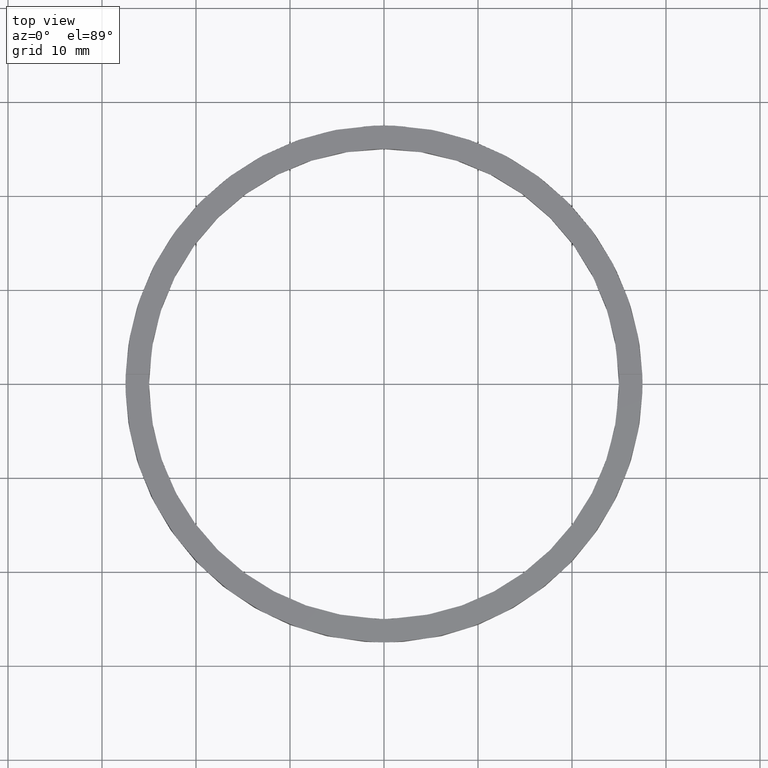
[diagram: clean part render]
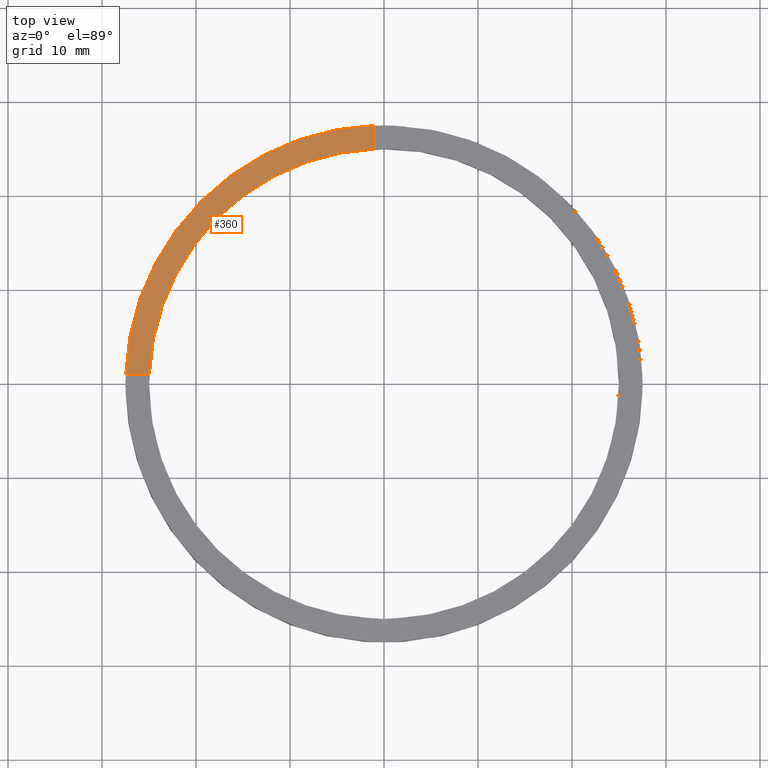
[diagram: same view with one face highlighted and labeled with its STEP entity id]
A machine part, top view. The second image highlights one B-rep face of the part: STEP entity #360.
In plain terms, the highlighted planar face has unit normal (0, 0, 1).
Its self-contained STEP definition (entity closure, byte-faithful):
#7 = CARTESIAN_POINT ( 'NONE',  ( -17.50000000000018474, 0.9999999999999749090, 2.500000000000000000 ) ) ;
#8 = AXIS2_PLACEMENT_3D ( 'NONE', #655, #257, #367 ) ;
#25 = CARTESIAN_POINT ( 'NONE',  ( -1.000000000000026423, 17.50000000000000000, 2.500000000000000000 ) ) ;
#42 = AXIS2_PLACEMENT_3D ( 'NONE', #298, #112, #399 ) ;
#47 = DIRECTION ( 'NONE',  ( 0.000000000000000000, 0.000000000000000000, 1.000000000000000000 ) ) ;
#66 = CIRCLE ( 'NONE', #8, 25.00000000000000000 ) ;
#67 = LINE ( 'NONE', #25, #320 ) ;
#75 = FACE_OUTER_BOUND ( 'NONE', #719, .T. ) ;
#86 = LINE ( 'NONE', #7, #604 ) ;
#89 = EDGE_CURVE ( 'NONE', #212, #713, #67, .T. ) ;
#108 = CARTESIAN_POINT ( 'NONE',  ( -27.48181216732259102, 0.9999999999999731326, 2.500000000000000000 ) ) ;
#112 = DIRECTION ( 'NONE',  ( 0.000000000000000000, 0.000000000000000000, 1.000000000000000000 ) ) ;
#128 = EDGE_CURVE ( 'NONE', #336, #737, #86, .T. ) ;
#133 = DIRECTION ( 'NONE',  ( -0.000000000000000000, -1.000000000000000000, -0.000000000000000000 ) ) ;
#153 = ORIENTED_EDGE ( 'NONE', *, *, #128, .F. ) ;
#200 = CARTESIAN_POINT ( 'NONE',  ( -1.000000000000026423, 27.48181216732259102, 2.500000000000000000 ) ) ;
#212 = VERTEX_POINT ( 'NONE', #200 ) ;
#238 = ORIENTED_EDGE ( 'NONE', *, *, #317, .F. ) ;
#257 = DIRECTION ( 'NONE',  ( 0.000000000000000000, 0.000000000000000000, 1.000000000000000000 ) ) ;
#298 = CARTESIAN_POINT ( 'NONE',  ( 0.000000000000000000, 0.000000000000000000, 2.500000000000000000 ) ) ;
#317 = EDGE_CURVE ( 'NONE', #713, #336, #66, .T. ) ;
#320 = VECTOR ( 'NONE', #133, 1000.000000000000000 ) ;
#336 = VERTEX_POINT ( 'NONE', #718 ) ;
#340 = CIRCLE ( 'NONE', #541, 27.50000000000000000 ) ;
#360 = ADVANCED_FACE ( 'NONE', ( #75 ), #661, .T. ) ;
#366 = EDGE_CURVE ( 'NONE', #212, #737, #340, .T. ) ;
#367 = DIRECTION ( 'NONE',  ( 1.000000000000000000, 0.000000000000000000, 0.000000000000000000 ) ) ;
#374 = ORIENTED_EDGE ( 'NONE', *, *, #366, .T. ) ;
#376 = ORIENTED_EDGE ( 'NONE', *, *, #89, .F. ) ;
#399 = DIRECTION ( 'NONE',  ( 1.000000000000000000, 0.000000000000000000, -0.000000000000000000 ) ) ;
#487 = DIRECTION ( 'NONE',  ( -1.000000000000000000, -1.734723475976807341E-16, 0.000000000000000000 ) ) ;
#529 = CARTESIAN_POINT ( 'NONE',  ( 0.000000000000000000, 0.000000000000000000, 2.500000000000000000 ) ) ;
#541 = AXIS2_PLACEMENT_3D ( 'NONE', #529, #47, #782 ) ;
#604 = VECTOR ( 'NONE', #487, 1000.000000000000000 ) ;
#655 = CARTESIAN_POINT ( 'NONE',  ( 0.000000000000000000, 0.000000000000000000, 2.500000000000000000 ) ) ;
#661 = PLANE ( 'NONE',  #42 ) ;
#704 = CARTESIAN_POINT ( 'NONE',  ( -1.000000000000026423, 24.97999199359359679, 2.500000000000000000 ) ) ;
#713 = VERTEX_POINT ( 'NONE', #704 ) ;
#718 = CARTESIAN_POINT ( 'NONE',  ( -24.97999199359359679, 0.9999999999999735767, 2.500000000000000000 ) ) ;
#719 = EDGE_LOOP ( 'NONE', ( #376, #374, #153, #238 ) ) ;
#737 = VERTEX_POINT ( 'NONE', #108 ) ;
#782 = DIRECTION ( 'NONE',  ( 1.000000000000000000, 0.000000000000000000, 0.000000000000000000 ) ) ;